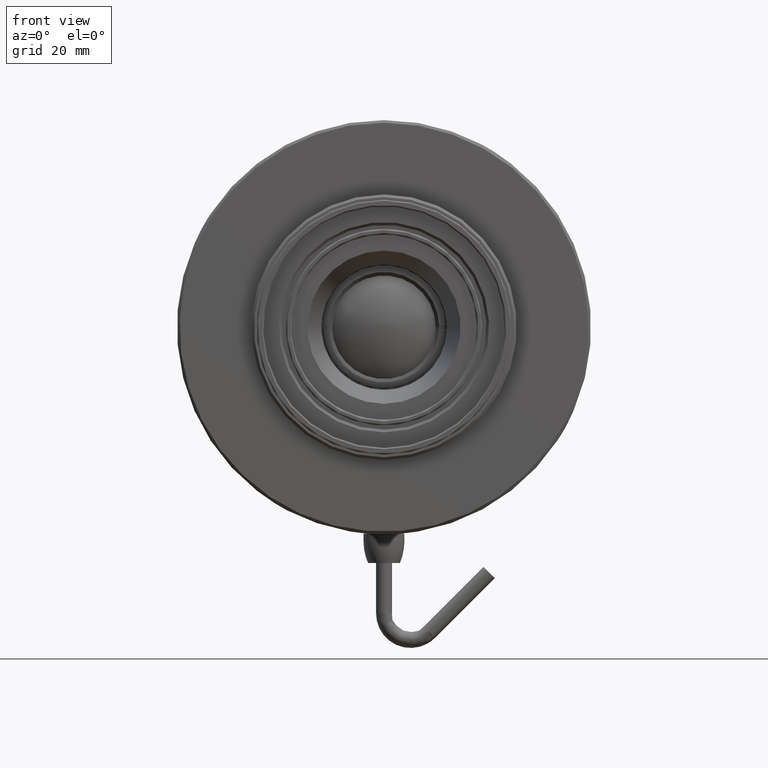
[diagram: clean part render]
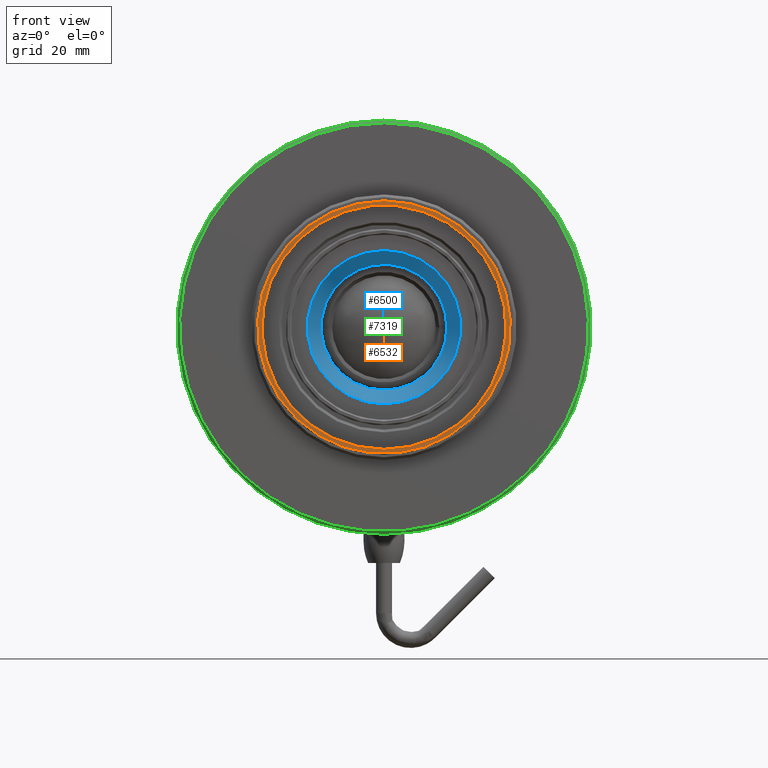
[diagram: same view with three faces highlighted in distinct colors, each labeled with its STEP entity id]
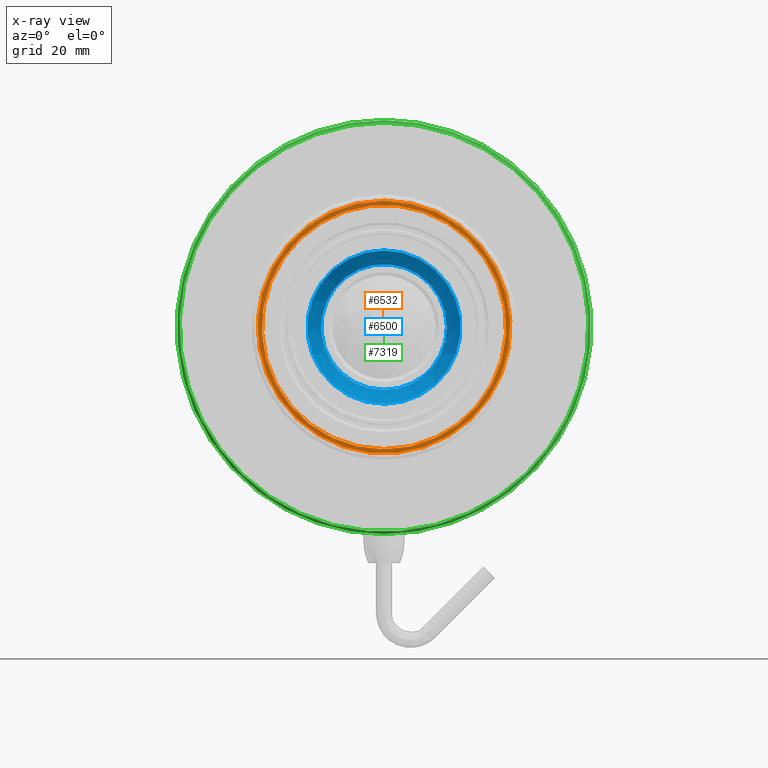
[diagram: x-ray of the same camera — body ghosted, the three highlighted faces saturated]
A machine part, front view with three faces highlighted in distinct colors.
The next image is the same camera in x-ray (body ghosted, the three faces saturated) — at least one of them is partly hidden behind the body in this view.
Their STEP definitions:

[orange] entity #6532 — the highlighted planar face has unit normal (0, 1, 0).
#853 = CARTESIAN_POINT ( 'NONE',  ( 0.000000000000000000, -64.49980754974940567, 23.80000000000000071 ) ) ;
#1292 = DIRECTION ( 'NONE',  ( 0.000000000000000000, -0.000000000000000000, 1.000000000000000000 ) ) ;
#1465 = DIRECTION ( 'NONE',  ( 0.000000000000000000, 0.000000000000000000, -1.000000000000000000 ) ) ;
#1534 = AXIS2_PLACEMENT_3D ( 'NONE', #5349, #3548, #1465 ) ;
#1690 = EDGE_LOOP ( 'NONE', ( #2314 ) ) ;
#2314 = ORIENTED_EDGE ( 'NONE', *, *, #11824, .F. ) ;
#2510 = CIRCLE ( 'NONE', #1534, 23.00000000000000000 ) ;
#3057 = FACE_OUTER_BOUND ( 'NONE', #1690, .T. ) ;
#3077 = EDGE_CURVE ( 'NONE', #5889, #5889, #2510, .T. ) ;
#3548 = DIRECTION ( 'NONE',  ( 0.000000000000000000, -1.000000000000000000, 0.000000000000000000 ) ) ;
#4028 = PLANE ( 'NONE',  #11900 ) ;
#4315 = AXIS2_PLACEMENT_3D ( 'NONE', #4332, #9725, #6863 ) ;
#4332 = CARTESIAN_POINT ( 'NONE',  ( 0.000000000000000000, -64.49980754974940567, 0.000000000000000000 ) ) ;
#5349 = CARTESIAN_POINT ( 'NONE',  ( 0.000000000000000000, -64.49980754974940567, 0.000000000000000000 ) ) ;
#5889 = VERTEX_POINT ( 'NONE', #10735 ) ;
#6532 = ADVANCED_FACE ( 'NONE', ( #3057, #10457 ), #4028, .F. ) ;
#6809 = DIRECTION ( 'NONE',  ( 0.000000000000000000, 1.000000000000000000, 0.000000000000000000 ) ) ;
#6863 = DIRECTION ( 'NONE',  ( 0.000000000000000000, 0.000000000000000000, 1.000000000000000000 ) ) ;
#7139 = VERTEX_POINT ( 'NONE', #853 ) ;
#7781 = ORIENTED_EDGE ( 'NONE', *, *, #3077, .F. ) ;
#9725 = DIRECTION ( 'NONE',  ( -0.000000000000000000, 1.000000000000000000, 0.000000000000000000 ) ) ;
#10311 = CIRCLE ( 'NONE', #4315, 23.80000000000000071 ) ;
#10457 = FACE_BOUND ( 'NONE', #10970, .T. ) ;
#10735 = CARTESIAN_POINT ( 'NONE',  ( 0.000000000000000000, -64.49980754974940567, -23.00000000000000000 ) ) ;
#10970 = EDGE_LOOP ( 'NONE', ( #7781 ) ) ;
#11557 = CARTESIAN_POINT ( 'NONE',  ( 0.000000000000000000, -64.49980754974940567, 23.00000000000000000 ) ) ;
#11824 = EDGE_CURVE ( 'NONE', #7139, #7139, #10311, .T. ) ;
#11900 = AXIS2_PLACEMENT_3D ( 'NONE', #11557, #6809, #1292 ) ;

[blue] entity #6500 — the highlighted conical surface has half-angle 18.039 deg.
#361 = VERTEX_POINT ( 'NONE', #602 ) ;
#602 = CARTESIAN_POINT ( 'NONE',  ( -2.602085213965210642E-15, -59.65603120081730282, -14.43111445823119965 ) ) ;
#646 = DIRECTION ( 'NONE',  ( 0.000000000000000000, 0.000000000000000000, -1.000000000000000000 ) ) ;
#679 = ORIENTED_EDGE ( 'NONE', *, *, #2237, .T. ) ;
#699 = DIRECTION ( 'NONE',  ( 1.000000000000000000, 0.000000000000000000, 0.000000000000000000 ) ) ;
#936 = AXIS2_PLACEMENT_3D ( 'NONE', #4413, #3576, #646 ) ;
#981 = VERTEX_POINT ( 'NONE', #3779 ) ;
#991 = EDGE_CURVE ( 'NONE', #981, #981, #6032, .T. ) ;
#1321 = CIRCLE ( 'NONE', #936, 14.43111445823119787 ) ;
#1472 = ORIENTED_EDGE ( 'NONE', *, *, #991, .F. ) ;
#1626 = CARTESIAN_POINT ( 'NONE',  ( -2.622783700126043916E-15, -51.73072304287039458, -1.734723475976810250E-15 ) ) ;
#2237 = EDGE_CURVE ( 'NONE', #361, #361, #1321, .T. ) ;
#3128 = CARTESIAN_POINT ( 'NONE',  ( -2.602085213965210642E-15, -59.65603120081730282, -1.734723475976810250E-15 ) ) ;
#3576 = DIRECTION ( 'NONE',  ( -5.779905801006098431E-32, -1.000000000000000000, 2.404143465146391700E-16 ) ) ;
#3779 = CARTESIAN_POINT ( 'NONE',  ( 11.84999999925491210, -51.73072304287039458, -1.734723475976810250E-15 ) ) ;
#4101 = DIRECTION ( 'NONE',  ( -5.779905801006098431E-32, -1.000000000000000000, 2.404143465146391700E-16 ) ) ;
#4413 = CARTESIAN_POINT ( 'NONE',  ( -2.602085213965210642E-15, -59.65603120081730282, -1.734723475976810250E-15 ) ) ;
#5848 = FACE_OUTER_BOUND ( 'NONE', #8098, .T. ) ;
#6032 = CIRCLE ( 'NONE', #7573, 11.84999999925491565 ) ;
#6500 = ADVANCED_FACE ( 'NONE', ( #8809, #5848 ), #7990, .F. ) ;
#6743 = DIRECTION ( 'NONE',  ( 0.000000000000000000, 0.000000000000000000, -1.000000000000000000 ) ) ;
#7573 = AXIS2_PLACEMENT_3D ( 'NONE', #1626, #11820, #699 ) ;
#7990 = CONICAL_SURFACE ( 'NONE', #8579, 14.43111445823119787, 0.3148468240281320774 ) ;
#8098 = EDGE_LOOP ( 'NONE', ( #679 ) ) ;
#8579 = AXIS2_PLACEMENT_3D ( 'NONE', #3128, #4101, #6743 ) ;
#8809 = FACE_BOUND ( 'NONE', #11080, .T. ) ;
#11080 = EDGE_LOOP ( 'NONE', ( #1472 ) ) ;
#11820 = DIRECTION ( 'NONE',  ( -6.123031769111889989E-17, -1.000000000000000000, 0.000000000000000000 ) ) ;

[green] entity #7319 — the highlighted conical surface has half-angle 45 deg.
#551 = CIRCLE ( 'NONE', #11025, 39.00000000000000000 ) ;
#641 = DIRECTION ( 'NONE',  ( -0.000000000000000000, 1.000000000000000000, 0.000000000000000000 ) ) ;
#792 = VERTEX_POINT ( 'NONE', #4503 ) ;
#881 = CARTESIAN_POINT ( 'NONE',  ( 0.000000000000000000, -57.49980754974939856, 0.000000000000000000 ) ) ;
#1421 = EDGE_LOOP ( 'NONE', ( #8899 ) ) ;
#1856 = DIRECTION ( 'NONE',  ( -0.000000000000000000, 1.000000000000000000, -0.000000000000000000 ) ) ;
#2886 = DIRECTION ( 'NONE',  ( 0.000000000000000000, 0.000000000000000000, 1.000000000000000000 ) ) ;
#3061 = CARTESIAN_POINT ( 'NONE',  ( 0.000000000000000000, -57.49980754974939856, 0.000000000000000000 ) ) ;
#3064 = AXIS2_PLACEMENT_3D ( 'NONE', #5974, #641, #4293 ) ;
#4293 = DIRECTION ( 'NONE',  ( 0.000000000000000000, 0.000000000000000000, 1.000000000000000000 ) ) ;
#4503 = CARTESIAN_POINT ( 'NONE',  ( 0.000000000000000000, -57.49980754974939856, -39.00000000000000000 ) ) ;
#4787 = CARTESIAN_POINT ( 'NONE',  ( 0.000000000000000000, -57.99980754974939856, 38.50000000000000000 ) ) ;
#4815 = ORIENTED_EDGE ( 'NONE', *, *, #7086, .T. ) ;
#5074 = EDGE_CURVE ( 'NONE', #792, #792, #551, .T. ) ;
#5974 = CARTESIAN_POINT ( 'NONE',  ( 0.000000000000000000, -57.99980754974939856, 0.000000000000000000 ) ) ;
#6149 = CIRCLE ( 'NONE', #3064, 38.50000000000000000 ) ;
#6596 = VERTEX_POINT ( 'NONE', #4787 ) ;
#7086 = EDGE_CURVE ( 'NONE', #6596, #6596, #6149, .T. ) ;
#7319 = ADVANCED_FACE ( 'NONE', ( #7468, #10343 ), #11986, .T. ) ;
#7468 = FACE_OUTER_BOUND ( 'NONE', #1421, .T. ) ;
#8857 = AXIS2_PLACEMENT_3D ( 'NONE', #3061, #11187, #2886 ) ;
#8899 = ORIENTED_EDGE ( 'NONE', *, *, #5074, .F. ) ;
#9421 = DIRECTION ( 'NONE',  ( 0.000000000000000000, 0.000000000000000000, -1.000000000000000000 ) ) ;
#10343 = FACE_BOUND ( 'NONE', #11748, .T. ) ;
#11025 = AXIS2_PLACEMENT_3D ( 'NONE', #881, #1856, #9421 ) ;
#11187 = DIRECTION ( 'NONE',  ( -0.000000000000000000, 1.000000000000000000, 0.000000000000000000 ) ) ;
#11748 = EDGE_LOOP ( 'NONE', ( #4815 ) ) ;
#11986 = CONICAL_SURFACE ( 'NONE', #8857, 39.00000000000000000, 0.7853981633974482790 ) ;